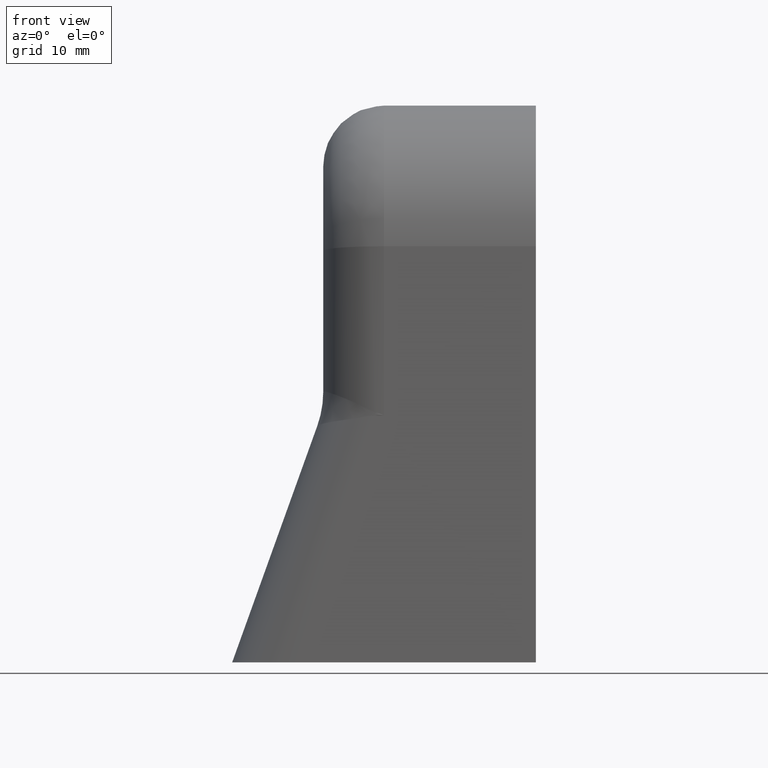
[diagram: clean part render]
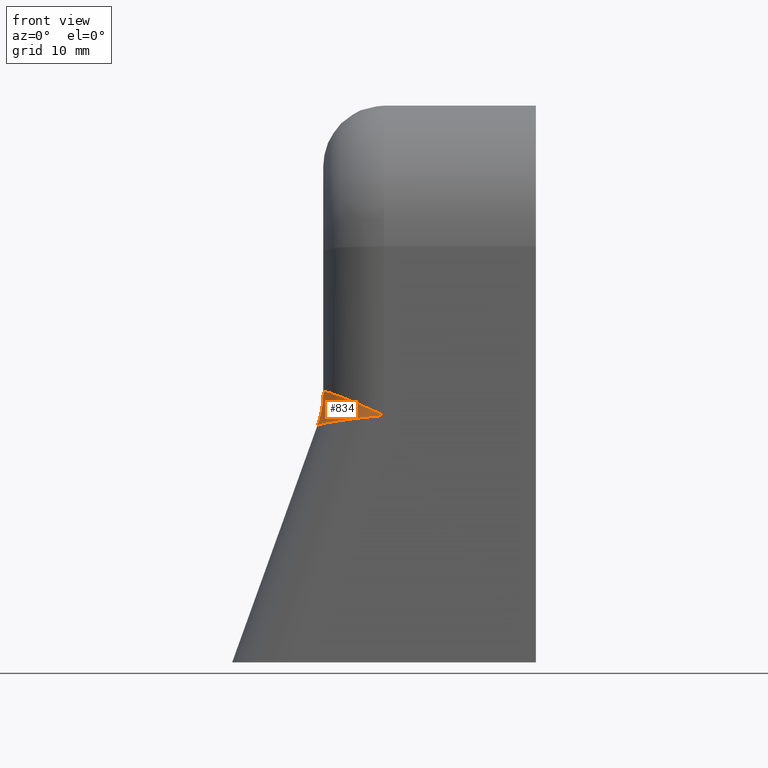
[diagram: same view with one face highlighted and labeled with its STEP entity id]
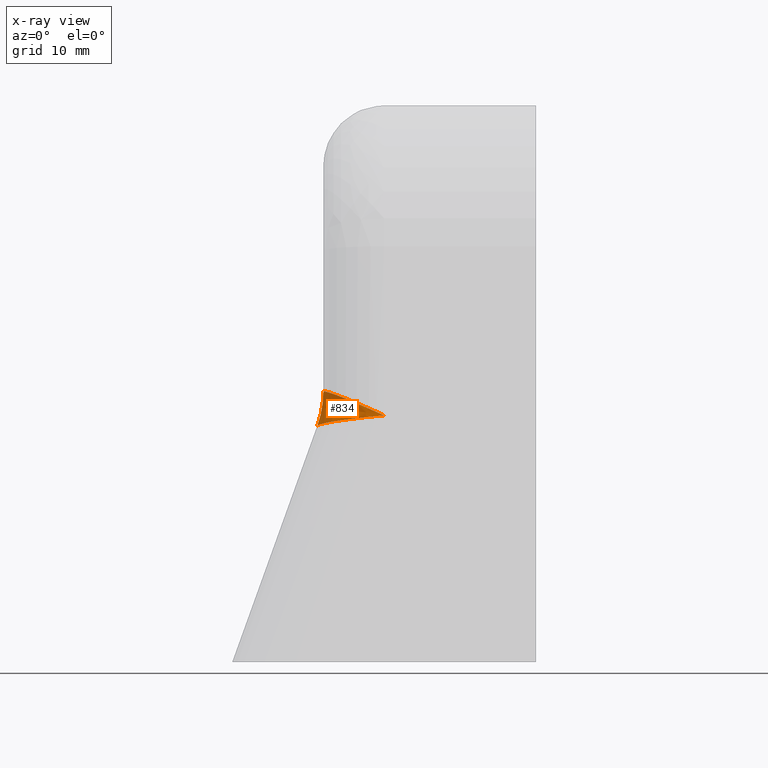
[diagram: x-ray of the same camera — body ghosted, the highlighted face saturated]
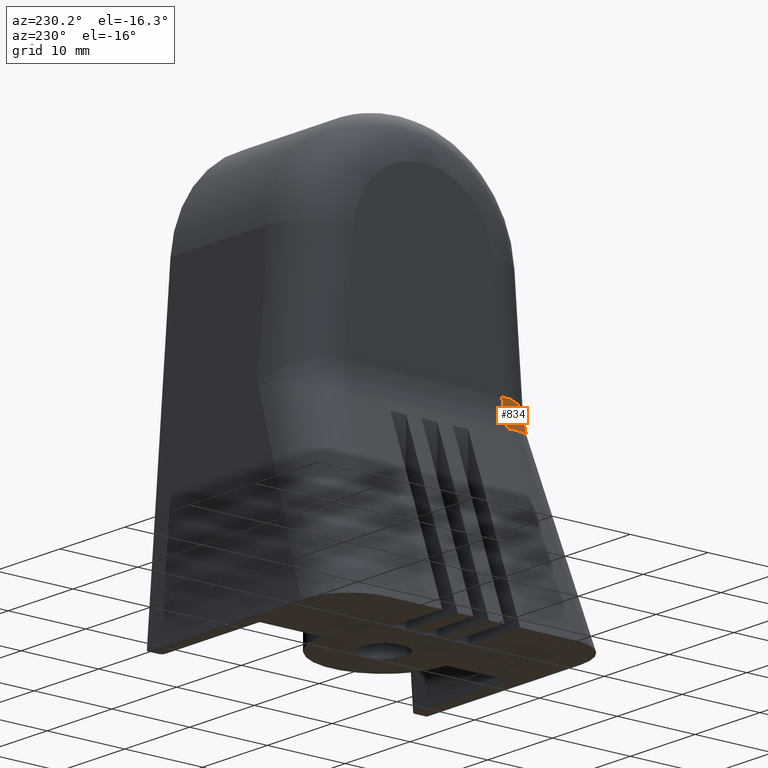
[diagram: same view with one face highlighted and labeled with its STEP entity id]
A machine part, front view. The second image highlights one B-rep face of the part: STEP entity #834.
The next image is the same camera in x-ray: the body ghosted, the highlighted face saturated — about 0% of this face is hidden behind the body in this view.
A second angle (auxiliary view) of the same face is appended — the face is thin or edge-on in the first view.
In plain terms, the highlighted face is a freeform B-spline surface patch.
Its self-contained STEP definition (entity closure, byte-faithful):
#25=CARTESIAN_POINT('',(-9.916781E-016,-16.195332106218849,24.395535503275639));
#26=VERTEX_POINT('',#25);
#513=CARTESIAN_POINT('',(-6.586129657812694,-10.405005355083398,23.371862061631390));
#514=VERTEX_POINT('',#513);
#555=CARTESIAN_POINT('',(-6.586129657812692,-10.405005355083398,23.371862061631390));
#556=CARTESIAN_POINT('',(-6.572507940494989,-10.899856950304812,23.409700165291682));
#557=CARTESIAN_POINT('',(-6.417700754149856,-11.834006704426287,23.492797505137617));
#558=CARTESIAN_POINT('',(-5.844030609838172,-13.118450196735640,23.639669716167703));
#559=CARTESIAN_POINT('',(-5.003071976767788,-14.214108935293707,23.796737198326383));
#560=CARTESIAN_POINT('',(-3.910127516045699,-15.115930261895661,23.962242944521634));
#561=CARTESIAN_POINT('',(-2.637915386433975,-15.764856989739757,24.125245054688065));
#562=CARTESIAN_POINT('',(-1.308528274394765,-16.126716471342498,24.272179418668117));
#563=CARTESIAN_POINT('',(-0.419522885565759,-16.198122088685388,24.357820466314976));
#564=CARTESIAN_POINT('',(1.144282E-014,-16.195332106218860,24.395535503275653));
#565=B_SPLINE_CURVE_WITH_KNOTS('',3,(#555,#556,#557,#558,#559,#560,#561,#562,#563,#564),.UNSPECIFIED.,.F.,.U.,(4,1,1,1,1,1,1,4),(0.0,1.555567845186606,2.948878607312053,4.347914220249208,5.760733546111419,7.186200372054739,8.546069345939138,9.761226978496898),.UNSPECIFIED.);
#566=EDGE_CURVE('',#514,#26,#565,.T.);
#593=CARTESIAN_POINT('',(-5.998126416187485,-10.155800233824731,26.740621712209553));
#594=VERTEX_POINT('',#593);
#602=CARTESIAN_POINT('',(-5.998126416187486,-10.155800233824733,26.740621712209531));
#603=CARTESIAN_POINT('',(-5.985720832525733,-10.651167245822352,26.771492401917222));
#604=CARTESIAN_POINT('',(-5.844734681010952,-11.591174574217220,26.775406939408178));
#605=CARTESIAN_POINT('',(-5.322281248486696,-12.897324523171577,26.628850849553523));
#606=CARTESIAN_POINT('',(-4.556402583168176,-14.024803345605338,26.355773822253290));
#607=CARTESIAN_POINT('',(-3.561035139481960,-14.967979363204028,25.962246055460156));
#608=CARTESIAN_POINT('',(-2.402404869796002,-15.665043888889766,25.474520483075139));
#609=CARTESIAN_POINT('',(-1.191704144431085,-16.077204547916544,24.941482557453625));
#610=CARTESIAN_POINT('',(-0.382068290915329,-16.182248236058719,24.572403513235642));
#611=CARTESIAN_POINT('',(-9.916781E-016,-16.195332106218849,24.395535503275639));
#612=B_SPLINE_CURVE_WITH_KNOTS('',3,(#602,#603,#604,#605,#606,#607,#608,#609,#610,#611),.UNSPECIFIED.,.F.,.U.,(4,1,1,1,1,1,1,4),(0.0,1.555567845186605,2.948878607312051,4.347914220249205,5.760733546111416,7.186200372054736,8.546069345939133,9.761226978496893),.UNSPECIFIED.);
#613=EDGE_CURVE('',#594,#26,#612,.T.);
#740=CARTESIAN_POINT('',(-15.995003776499960,-10.405005355083404,26.759056744358809));
#741=DIRECTION('',(-0.024988369582415,0.997275055599764,-0.069412137728931));
#742=DIRECTION('',(0.999687736031248,0.024920512125867,-0.001843503214927));
#743=AXIS2_PLACEMENT_3D('',#740,#741,#742);
#744=CIRCLE('',#743,10.0);
#745=EDGE_CURVE('',#594,#514,#744,.T.);
#751=CARTESIAN_POINT('',(-5.998126416187485,-10.155800233824733,26.740621712209531));
#752=CARTESIAN_POINT('',(-5.998157617780868,-10.175732661571686,26.454254889878552));
#753=CARTESIAN_POINT('',(-6.022962827383687,-10.216235439704962,25.881263337233825));
#754=CARTESIAN_POINT('',(-6.134132608033382,-10.278373845970599,25.028514337781967));
#755=CARTESIAN_POINT('',(-6.318411067412226,-10.341451100554842,24.188595611301682));
#756=CARTESIAN_POINT('',(-6.489161909524560,-10.383828085883147,23.641216917987311));
#757=CARTESIAN_POINT('',(-6.586129657812691,-10.405005355083398,23.371862061631390));
#758=CARTESIAN_POINT('',(-5.993185050429797,-10.350084860031860,26.752693995135029));
#759=CARTESIAN_POINT('',(-5.993305532817997,-10.368386369771837,26.466453268084777));
#760=CARTESIAN_POINT('',(-6.018224285771839,-10.406424820552491,25.893774581483335));
#761=CARTESIAN_POINT('',(-6.129368609477582,-10.467292315114944,25.041658108193019));
#762=CARTESIAN_POINT('',(-6.313426197372722,-10.531536083498860,24.202518108430652));
#763=CARTESIAN_POINT('',(-6.483903313150564,-10.576309508084975,23.655744261652121));
#764=CARTESIAN_POINT('',(-6.580703884277978,-10.599084681574016,23.386709590096618));
#765=CARTESIAN_POINT('',(-5.964430374695183,-10.739436273200548,26.768112366108785));
#766=CARTESIAN_POINT('',(-5.965021336820177,-10.754425439093524,26.483061097620052));
#767=CARTESIAN_POINT('',(-5.990527303549230,-10.787424299891679,25.912881876182954));
#768=CARTESIAN_POINT('',(-6.101484476655999,-10.845565270811774,25.064773915012580));
#769=CARTESIAN_POINT('',(-6.284299446414613,-10.911929604118985,24.229816764818132));
#770=CARTESIAN_POINT('',(-6.453255986419636,-10.961347045035398,23.685890825158914));
#771=CARTESIAN_POINT('',(-6.549130354559523,-10.987241419613174,23.418277602584908));
#772=CARTESIAN_POINT('',(-5.831467330192909,-11.511342702165301,26.763325984888880));
#773=CARTESIAN_POINT('',(-5.834198935378826,-11.519981565705661,26.484430070383645));
#774=CARTESIAN_POINT('',(-5.862367113338865,-11.543179959181698,25.926796827783068));
#775=CARTESIAN_POINT('',(-5.972435760673903,-11.595468207424917,25.097723308985177));
#776=CARTESIAN_POINT('',(-6.149526846793636,-11.664882819183642,24.281615211675881));
#777=CARTESIAN_POINT('',(-6.311505695489202,-11.722271758361963,23.749867332321472));
#778=CARTESIAN_POINT('',(-6.403132789648890,-11.753623611619755,23.488167963443701));
#779=CARTESIAN_POINT('',(-5.401448741655918,-12.832297947387110,26.660889454004753));
#780=CARTESIAN_POINT('',(-5.410561466938130,-12.831450715694722,26.402657531287645));
#781=CARTESIAN_POINT('',(-5.446523634445338,-12.839600420332424,25.886703974110961));
#782=CARTESIAN_POINT('',(-5.553316520988815,-12.881308486148763,25.119688221502315));
#783=CARTESIAN_POINT('',(-5.712314645982978,-12.952246876288390,24.363947003112699));
#784=CARTESIAN_POINT('',(-5.852537529138095,-13.018767196926248,23.870509713963752));
#785=CARTESIAN_POINT('',(-5.930958983553234,-13.056712805500819,23.627245060240476));
#786=CARTESIAN_POINT('',(-4.251620590386211,-14.500450644632902,26.249097450602022));
#787=CARTESIAN_POINT('',(-4.272034211214732,-14.496019608359415,26.047066746080745));
#788=CARTESIAN_POINT('',(-4.320155811825561,-14.496755708372483,25.643627544275386));
#789=CARTESIAN_POINT('',(-4.413921482904517,-14.526657017071265,25.042526677585414));
#790=CARTESIAN_POINT('',(-4.528976061209434,-14.585257049666353,24.447264700418067));
#791=CARTESIAN_POINT('',(-4.619654683061694,-14.643346690433292,24.055496400250142));
#792=CARTESIAN_POINT('',(-4.668411854164960,-14.677093407932070,23.861237158793745));
#793=CARTESIAN_POINT('',(-2.612648953301499,-15.602120550500310,25.567725031559100));
#794=CARTESIAN_POINT('',(-2.631455270962115,-15.603511790779873,25.444592921589845));
#795=CARTESIAN_POINT('',(-2.670364033513250,-15.610130051252167,25.198594763084717));
#796=CARTESIAN_POINT('',(-2.732549159477503,-15.631548374461737,24.830784711447890));
#797=CARTESIAN_POINT('',(-2.798500673220080,-15.664436396141632,24.464480542197169));
#798=CARTESIAN_POINT('',(-2.844942207831459,-15.693990948416173,24.221493918150401));
#799=CARTESIAN_POINT('',(-2.868769939618836,-15.710668696044001,24.100369100004489));
#800=CARTESIAN_POINT('',(-1.333475907721815,-16.021832436641763,25.003374873404937));
#801=CARTESIAN_POINT('',(-1.344029918440921,-16.024397204321886,24.940771878127713));
#802=CARTESIAN_POINT('',(-1.365310221728118,-16.030553989657882,24.815642654863098));
#803=CARTESIAN_POINT('',(-1.397742247097820,-16.042868171008628,24.628227134646473));
#804=CARTESIAN_POINT('',(-1.430680308001118,-16.058258871405357,24.441127527390755));
#805=CARTESIAN_POINT('',(-1.452971357296762,-16.070568317945586,24.316629870884157));
#806=CARTESIAN_POINT('',(-1.464198086943168,-16.077234574279707,24.254447704943054));
#807=CARTESIAN_POINT('',(-0.575120225989255,-16.157275516988385,24.660413286644843));
#808=CARTESIAN_POINT('',(-0.579819041415417,-16.158966682952276,24.633477540904273));
#809=CARTESIAN_POINT('',(-0.589218418934979,-16.162499117796415,24.579612089600825));
#810=CARTESIAN_POINT('',(-0.603316417542630,-16.168248273530061,24.498838384908037));
#811=CARTESIAN_POINT('',(-0.617410180719419,-16.174447234603690,24.418097215438447));
#812=CARTESIAN_POINT('',(-0.626803363860991,-16.178879385712129,24.364297239743017));
#813=CARTESIAN_POINT('',(-0.631499924205206,-16.181170129357540,24.337405454346531));
#814=CARTESIAN_POINT('',(-0.191716106860671,-16.188778548382516,24.484286071333841));
#815=CARTESIAN_POINT('',(-0.193282600050688,-16.189438788659533,24.475304735929114));
#816=CARTESIAN_POINT('',(-0.196410988638778,-16.190760924653777,24.457353425434295));
#817=CARTESIAN_POINT('',(-0.201103763955119,-16.192748427649793,24.430446215637524));
#818=CARTESIAN_POINT('',(-0.205803780238792,-16.194741739050599,24.403540699400697));
#819=CARTESIAN_POINT('',(-0.208941611981682,-16.196075326846426,24.385591884320846));
#820=CARTESIAN_POINT('',(-0.210510257647739,-16.196743808255757,24.376611534262544));
#821=CARTESIAN_POINT('',(-8.881784E-016,-16.195332106218849,24.395535503275639));
#822=CARTESIAN_POINT('',(1.480297E-016,-16.195332106218849,24.395535503275635));
#823=CARTESIAN_POINT('',(2.220446E-015,-16.195332106218849,24.395535503275639));
#824=CARTESIAN_POINT('',(5.329071E-015,-16.195332106218864,24.395535503275649));
#825=CARTESIAN_POINT('',(8.437695E-015,-16.195332106218849,24.395535503275642));
#826=CARTESIAN_POINT('',(1.051011E-014,-16.195332106218860,24.395535503275649));
#827=CARTESIAN_POINT('',(1.154632E-014,-16.195332106218864,24.395535503275653));
#828=B_SPLINE_SURFACE_WITH_KNOTS('',3,3,((#751,#758,#765,#772,#779,#786,#793,#800,#807,#814,#821),(#752,#759,#766,#773,#780,#787,#794,#801,#808,#815,#822),(#753,#760,#767,#774,#781,#788,#795,#802,#809,#816,#823),(#754,#761,#768,#775,#782,#789,#796,#803,#810,#817,#824),(#755,#762,#769,#776,#783,#790,#797,#804,#811,#818,#825),(#756,#763,#770,#777,#784,#791,#798,#805,#812,#819,#826),(#757,#764,#771,#778,#785,#792,#799,#806,#813,#820,#827)),.UNSPECIFIED.,.F.,.F.,.U.,(4,1,1,1,4),(4,1,1,1,1,1,1,1,4),(0.0,0.513677249815299,1.027354499630597,1.541031749445897,2.054708999261196),(0.0,0.576845023992475,1.154857713652445,2.316236110708362,4.672213350492898,7.097843937131948,8.335943332638768,8.958400586907906,9.581669332638176),.UNSPECIFIED.);
#829=ORIENTED_EDGE('',*,*,#566,.T.);
#830=ORIENTED_EDGE('',*,*,#613,.F.);
#831=ORIENTED_EDGE('',*,*,#745,.T.);
#832=EDGE_LOOP('',(#829,#830,#831));
#833=FACE_OUTER_BOUND('',#832,.T.);
#834=ADVANCED_FACE('',(#833),#828,.T.);